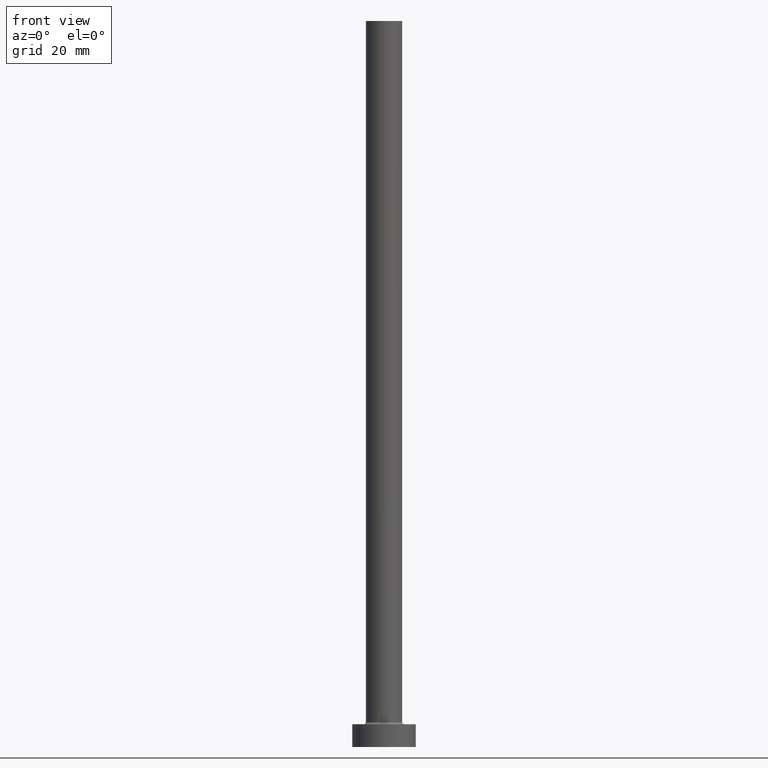
[diagram: clean part render]
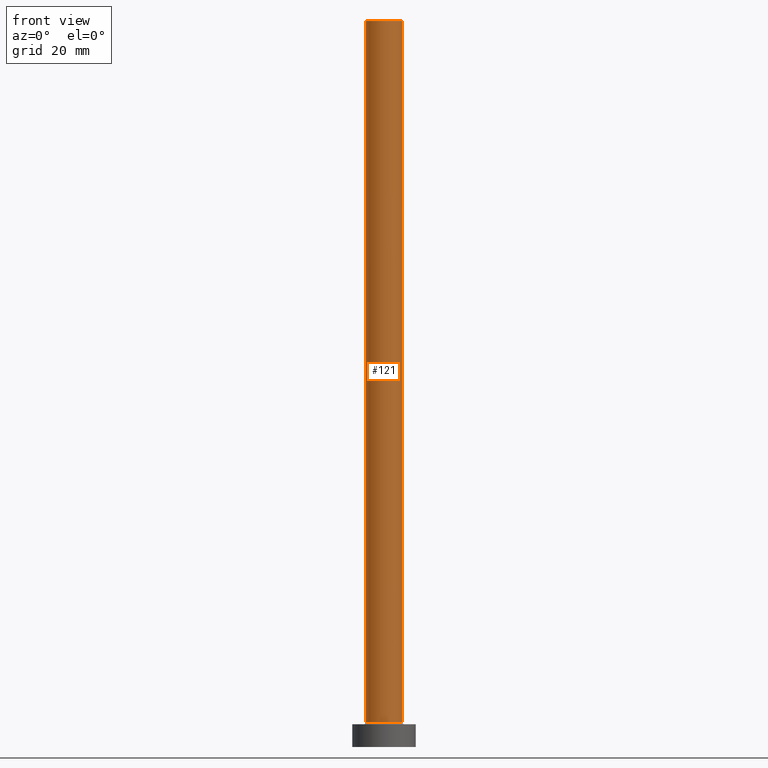
[diagram: same view with one face highlighted and labeled with its STEP entity id]
A machine part, front view. The second image highlights one B-rep face of the part: STEP entity #121.
In plain terms, the highlighted cylindrical surface (edge-blend (fillet) strip) has radius 4 mm, axis along (-0, -0, -1).
Its self-contained STEP definition (entity closure, byte-faithful):
#10 = CIRCLE ( 'NONE', #403, 4.000000000000000000 ) ;
#66 = ORIENTED_EDGE ( 'NONE', *, *, #226, .F. ) ;
#68 = VECTOR ( 'NONE', #400, 1000.000000000000000 ) ;
#85 = CARTESIAN_POINT ( 'NONE',  ( -4.000000000000000000, 0.000000000000000000, 160.0000000000000000 ) ) ;
#96 = EDGE_CURVE ( 'NONE', #312, #300, #257, .T. ) ;
#102 = CYLINDRICAL_SURFACE ( 'NONE', #143, 4.000000000000000000 ) ;
#121 = ADVANCED_FACE ( 'NONE', ( #404 ), #102, .T. ) ;
#122 = VERTEX_POINT ( 'NONE', #241 ) ;
#132 = CARTESIAN_POINT ( 'NONE',  ( -4.000000000000000000, 0.000000000000000000, 5.500000000000005329 ) ) ;
#134 = CARTESIAN_POINT ( 'NONE',  ( -4.000000000000000000, 0.000000000000000000, 160.0000000000000000 ) ) ;
#138 = DIRECTION ( 'NONE',  ( -1.000000000000000000, 0.000000000000000000, 0.000000000000000000 ) ) ;
#143 = AXIS2_PLACEMENT_3D ( 'NONE', #201, #239, #138 ) ;
#148 = CARTESIAN_POINT ( 'NONE',  ( 0.000000000000000000, 0.000000000000000000, 5.500000000000005329 ) ) ;
#176 = CARTESIAN_POINT ( 'NONE',  ( 4.000000000000000000, 4.898587196589412829E-16, 160.0000000000000000 ) ) ;
#201 = CARTESIAN_POINT ( 'NONE',  ( 0.000000000000000000, 0.000000000000000000, 160.0000000000000000 ) ) ;
#212 = DIRECTION ( 'NONE',  ( 1.000000000000000000, 0.000000000000000000, 0.000000000000000000 ) ) ;
#219 = DIRECTION ( 'NONE',  ( -0.000000000000000000, -0.000000000000000000, -1.000000000000000000 ) ) ;
#226 = EDGE_CURVE ( 'NONE', #312, #325, #373, .T. ) ;
#227 = LINE ( 'NONE', #333, #68 ) ;
#239 = DIRECTION ( 'NONE',  ( -0.000000000000000000, -0.000000000000000000, -1.000000000000000000 ) ) ;
#241 = CARTESIAN_POINT ( 'NONE',  ( 4.000000000000000000, 4.898587196589412829E-16, 5.500000000000005329 ) ) ;
#257 = LINE ( 'NONE', #85, #368 ) ;
#286 = DIRECTION ( 'NONE',  ( 0.000000000000000000, 0.000000000000000000, 1.000000000000000000 ) ) ;
#297 = AXIS2_PLACEMENT_3D ( 'NONE', #423, #326, #212 ) ;
#300 = VERTEX_POINT ( 'NONE', #132 ) ;
#312 = VERTEX_POINT ( 'NONE', #134 ) ;
#315 = EDGE_LOOP ( 'NONE', ( #399, #66, #387, #402 ) ) ;
#325 = VERTEX_POINT ( 'NONE', #176 ) ;
#326 = DIRECTION ( 'NONE',  ( 0.000000000000000000, 0.000000000000000000, 1.000000000000000000 ) ) ;
#333 = CARTESIAN_POINT ( 'NONE',  ( 4.000000000000000000, 4.898587196589412829E-16, 160.0000000000000000 ) ) ;
#368 = VECTOR ( 'NONE', #219, 1000.000000000000000 ) ;
#373 = CIRCLE ( 'NONE', #297, 4.000000000000000000 ) ;
#387 = ORIENTED_EDGE ( 'NONE', *, *, #96, .T. ) ;
#399 = ORIENTED_EDGE ( 'NONE', *, *, #441, .F. ) ;
#400 = DIRECTION ( 'NONE',  ( -0.000000000000000000, -0.000000000000000000, -1.000000000000000000 ) ) ;
#402 = ORIENTED_EDGE ( 'NONE', *, *, #428, .T. ) ;
#403 = AXIS2_PLACEMENT_3D ( 'NONE', #148, #286, #426 ) ;
#404 = FACE_OUTER_BOUND ( 'NONE', #315, .T. ) ;
#423 = CARTESIAN_POINT ( 'NONE',  ( 0.000000000000000000, 0.000000000000000000, 160.0000000000000000 ) ) ;
#426 = DIRECTION ( 'NONE',  ( 1.000000000000000000, 0.000000000000000000, 0.000000000000000000 ) ) ;
#428 = EDGE_CURVE ( 'NONE', #300, #122, #10, .T. ) ;
#441 = EDGE_CURVE ( 'NONE', #325, #122, #227, .T. ) ;